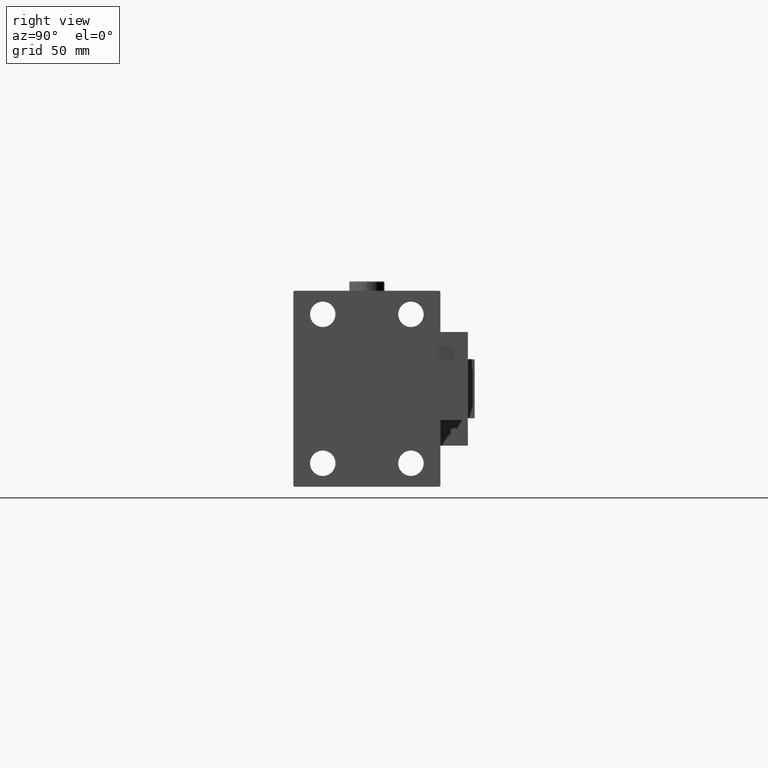
[diagram: clean part render]
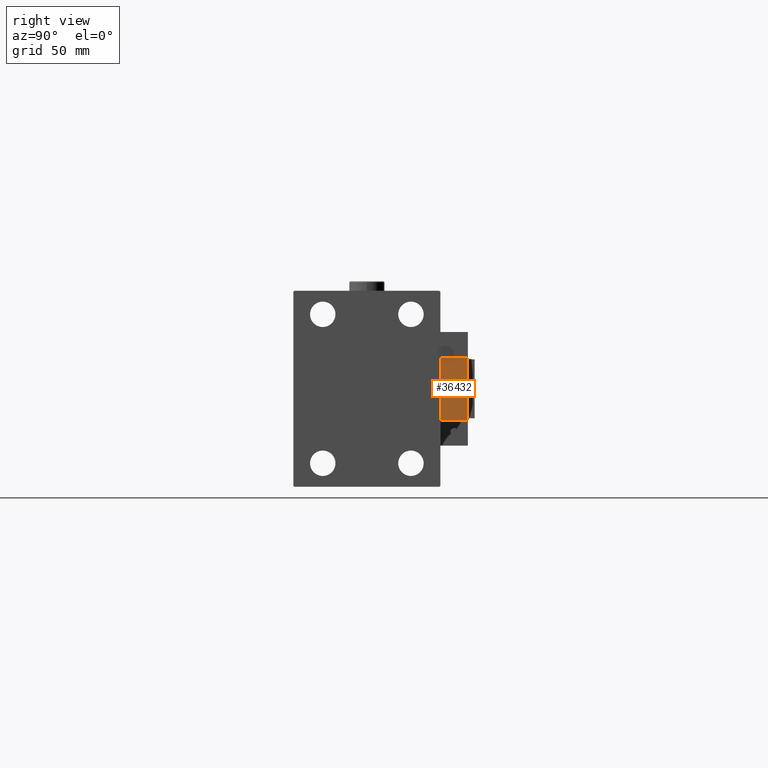
[diagram: same view with one face highlighted and labeled with its STEP entity id]
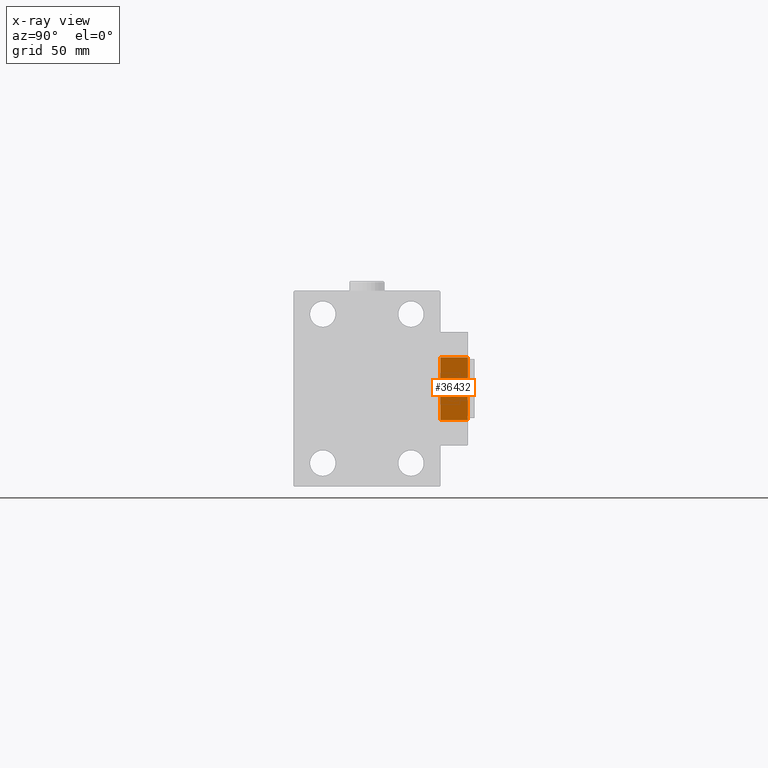
[diagram: x-ray of the same camera — body ghosted, the highlighted face saturated]
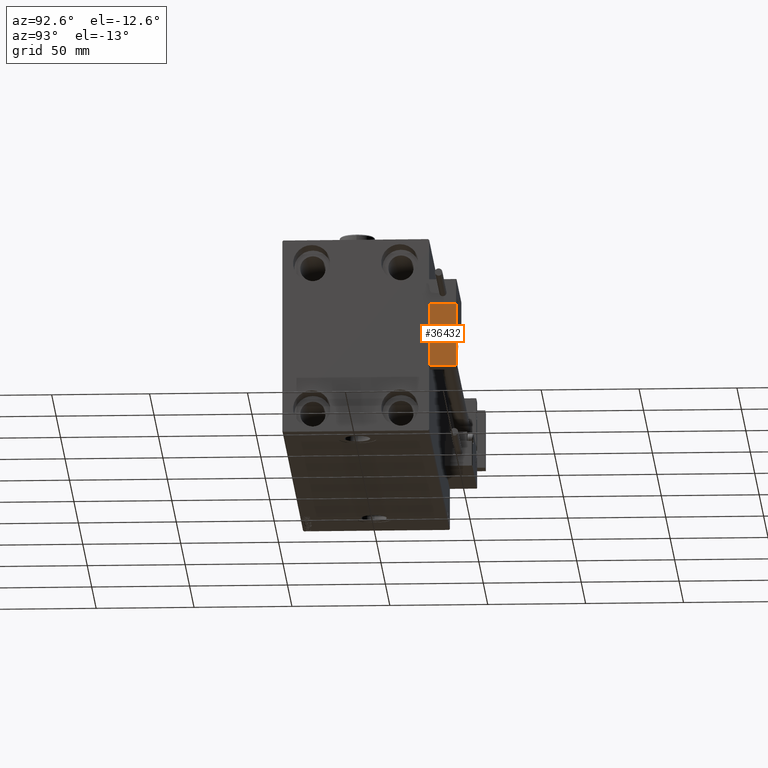
[diagram: same view with one face highlighted and labeled with its STEP entity id]
A machine part, right view. The second image highlights one B-rep face of the part: STEP entity #36432.
The next image is the same camera in x-ray: the body ghosted, the highlighted face saturated — about 0% of this face is hidden behind the body in this view.
A second angle (auxiliary view) of the same face is appended — the face is thin or edge-on in the first view.
In plain terms, the highlighted planar face has unit normal (-1, 0, 0).
Its self-contained STEP definition (entity closure, byte-faithful):
#473 = CARTESIAN_POINT ( 'NONE',  ( 10.00000000000000000, 0.000000000000000000, 0.000000000000000000 ) ) ;
#1051 = CIRCLE ( 'NONE', #4527, 4.000000000000000000 ) ;
#1619 = CARTESIAN_POINT ( 'NONE',  ( 10.00000000000000000, -7.000000000000000000, -16.00000000000000711 ) ) ;
#2772 = DIRECTION ( 'NONE',  ( 0.000000000000000000, -1.000000000000000000, 0.000000000000000000 ) ) ;
#4527 = AXIS2_PLACEMENT_3D ( 'NONE', #473, #37415, #12356 ) ;
#5023 = EDGE_CURVE ( 'NONE', #41721, #47998, #5753, .T. ) ;
#5753 = CIRCLE ( 'NONE', #9235, 4.000000000000000000 ) ;
#5866 = VERTEX_POINT ( 'NONE', #1619 ) ;
#9011 = AXIS2_PLACEMENT_3D ( 'NONE', #38461, #34148, #34675 ) ;
#9235 = AXIS2_PLACEMENT_3D ( 'NONE', #50631, #27161, #22843 ) ;
#12356 = DIRECTION ( 'NONE',  ( 0.000000000000000000, 0.000000000000000000, 1.000000000000000000 ) ) ;
#13781 = ORIENTED_EDGE ( 'NONE', *, *, #42235, .T. ) ;
#14657 = EDGE_CURVE ( 'NONE', #45976, #53111, #51861, .T. ) ;
#14829 = CARTESIAN_POINT ( 'NONE',  ( 10.00000000000000000, 7.000000000000000000, -16.00000000000000711 ) ) ;
#14922 = CARTESIAN_POINT ( 'NONE',  ( 10.00000000000000000, 7.000000000000000000, 15.99999999999999289 ) ) ;
#16544 = ORIENTED_EDGE ( 'NONE', *, *, #21115, .T. ) ;
#16755 = DIRECTION ( 'NONE',  ( 0.000000000000000000, -1.000000000000000000, 0.000000000000000000 ) ) ;
#17710 = FACE_OUTER_BOUND ( 'NONE', #39795, .T. ) ;
#21115 = EDGE_CURVE ( 'NONE', #47998, #41721, #1051, .T. ) ;
#21170 = VECTOR ( 'NONE', #2772, 1000.000000000000000 ) ;
#22281 = PLANE ( 'NONE',  #9011 ) ;
#22843 = DIRECTION ( 'NONE',  ( 0.000000000000000000, 0.000000000000000000, 1.000000000000000000 ) ) ;
#23871 = DIRECTION ( 'NONE',  ( 0.000000000000000000, 0.000000000000000000, -1.000000000000000000 ) ) ;
#24003 = VERTEX_POINT ( 'NONE', #14829 ) ;
#24324 = LINE ( 'NONE', #45356, #49768 ) ;
#24391 = CARTESIAN_POINT ( 'NONE',  ( 10.00000000000000000, 4.898587196589412829E-16, -4.000000000000000000 ) ) ;
#24768 = CARTESIAN_POINT ( 'NONE',  ( 10.00000000000000000, 7.000000000000000000, 15.99999999999999289 ) ) ;
#24868 = CARTESIAN_POINT ( 'NONE',  ( 10.00000000000000000, 0.000000000000000000, 4.000000000000000000 ) ) ;
#25218 = ORIENTED_EDGE ( 'NONE', *, *, #14657, .T. ) ;
#27161 = DIRECTION ( 'NONE',  ( -1.000000000000000000, 0.000000000000000000, 0.000000000000000000 ) ) ;
#27296 = LINE ( 'NONE', #48606, #32456 ) ;
#32362 = ORIENTED_EDGE ( 'NONE', *, *, #5023, .T. ) ;
#32456 = VECTOR ( 'NONE', #43755, 1000.000000000000000 ) ;
#33541 = ORIENTED_EDGE ( 'NONE', *, *, #47085, .F. ) ;
#34148 = DIRECTION ( 'NONE',  ( -1.000000000000000000, 0.000000000000000000, -0.000000000000000000 ) ) ;
#34675 = DIRECTION ( 'NONE',  ( -0.000000000000000000, 0.000000000000000000, 1.000000000000000000 ) ) ;
#35216 = EDGE_LOOP ( 'NONE', ( #32362, #16544 ) ) ;
#36216 = CARTESIAN_POINT ( 'NONE',  ( 10.00000000000000000, -7.000000000000000000, 15.99999999999999289 ) ) ;
#36432 = ADVANCED_FACE ( 'NONE', ( #46563, #17710 ), #22281, .F. ) ;
#36810 = LINE ( 'NONE', #41123, #43694 ) ;
#37415 = DIRECTION ( 'NONE',  ( -1.000000000000000000, 0.000000000000000000, 0.000000000000000000 ) ) ;
#38461 = CARTESIAN_POINT ( 'NONE',  ( 10.00000000000000000, 0.000000000000000000, 0.000000000000000000 ) ) ;
#39795 = EDGE_LOOP ( 'NONE', ( #13781, #33541, #42780, #25218 ) ) ;
#41123 = CARTESIAN_POINT ( 'NONE',  ( 10.00000000000000000, -7.000000000000000000, 15.99999999999999289 ) ) ;
#41619 = EDGE_CURVE ( 'NONE', #45976, #24003, #27296, .T. ) ;
#41721 = VERTEX_POINT ( 'NONE', #24868 ) ;
#42235 = EDGE_CURVE ( 'NONE', #53111, #5866, #36810, .T. ) ;
#42780 = ORIENTED_EDGE ( 'NONE', *, *, #41619, .F. ) ;
#43694 = VECTOR ( 'NONE', #23871, 1000.000000000000000 ) ;
#43755 = DIRECTION ( 'NONE',  ( 0.000000000000000000, 0.000000000000000000, -1.000000000000000000 ) ) ;
#45356 = CARTESIAN_POINT ( 'NONE',  ( 10.00000000000000000, 7.000000000000000000, -16.00000000000000711 ) ) ;
#45976 = VERTEX_POINT ( 'NONE', #24768 ) ;
#46563 = FACE_BOUND ( 'NONE', #35216, .T. ) ;
#47085 = EDGE_CURVE ( 'NONE', #24003, #5866, #24324, .T. ) ;
#47998 = VERTEX_POINT ( 'NONE', #24391 ) ;
#48606 = CARTESIAN_POINT ( 'NONE',  ( 10.00000000000000000, 7.000000000000000000, 15.99999999999999289 ) ) ;
#49768 = VECTOR ( 'NONE', #16755, 1000.000000000000000 ) ;
#50631 = CARTESIAN_POINT ( 'NONE',  ( 10.00000000000000000, 0.000000000000000000, 0.000000000000000000 ) ) ;
#51861 = LINE ( 'NONE', #14922, #21170 ) ;
#53111 = VERTEX_POINT ( 'NONE', #36216 ) ;